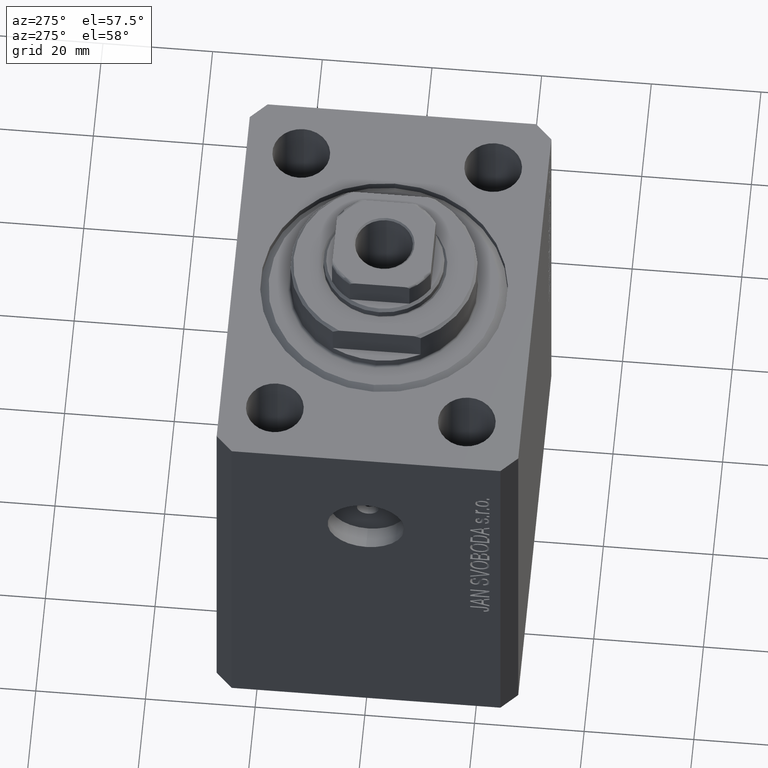
[diagram: clean part render]
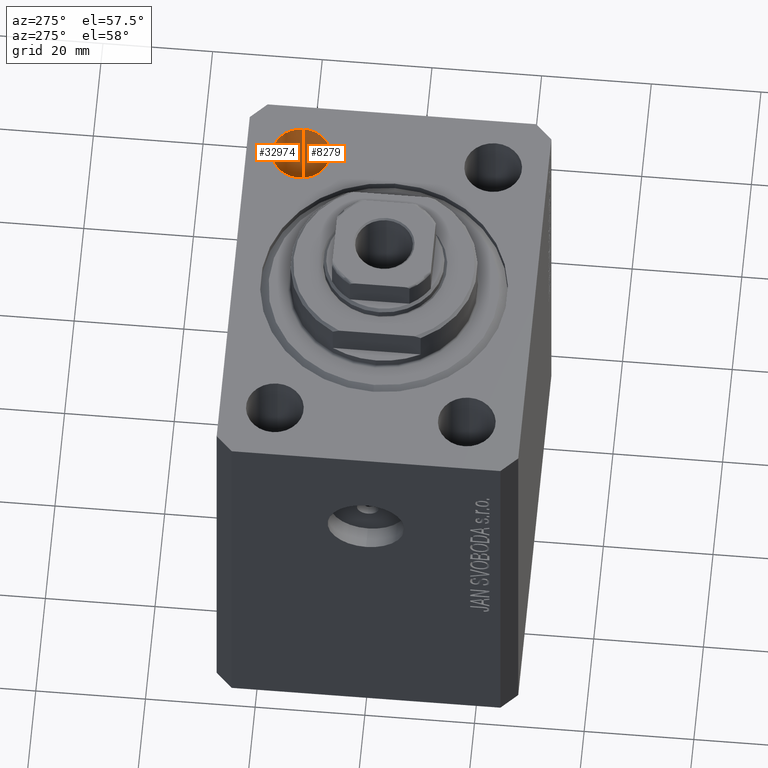
[diagram: same view with one multi-face feature highlighted, each face labeled with its STEP entity id]
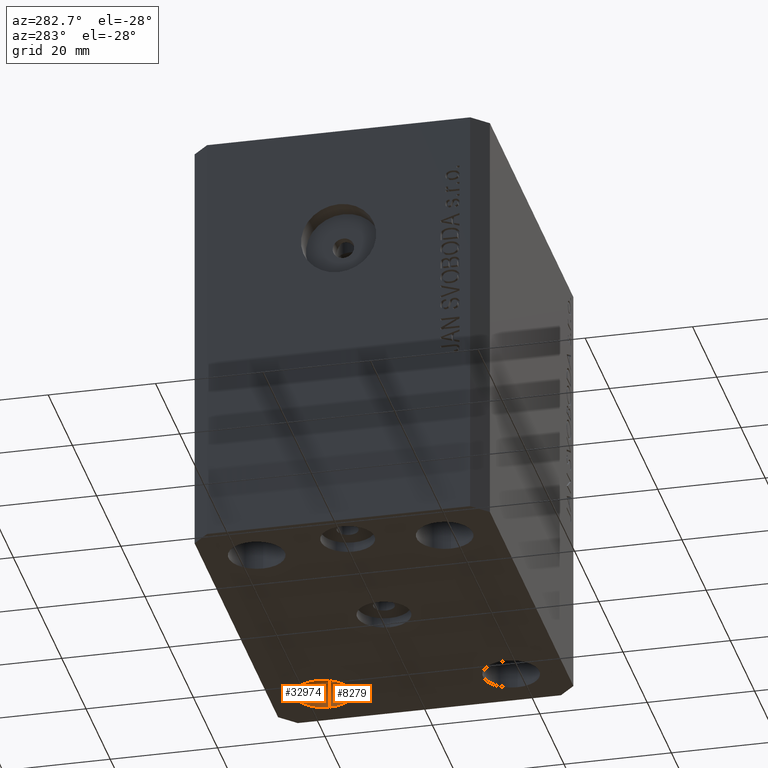
[diagram: same view with one multi-face feature highlighted, each face labeled with its STEP entity id]
A machine part, auxiliary view. The highlighted faces form ONE feature: a constant-radius fillet chain: 2 tangent blend faces with common blend radius 5.25 mm. The faces share edges in the B-rep.
A second angle (auxiliary view) of the same feature is appended — it is thin or edge-on in the first view.
Their STEP definitions:
[1] entity #32974 (Cylinder):
#3653 = EDGE_CURVE ( 'NONE', #6079, #40821, #25484, .T. ) ;
#3763 = LINE ( 'NONE', #31597, #25236 ) ;
#3975 = EDGE_CURVE ( 'NONE', #6079, #44770, #20588, .T. ) ;
#5504 = AXIS2_PLACEMENT_3D ( 'NONE', #19606, #15751, #32730 ) ;
#6079 = VERTEX_POINT ( 'NONE', #17397 ) ;
#8917 = CARTESIAN_POINT ( 'NONE',  ( 27.50000000000000000, 17.49999999999999289, 0.000000000000000000 ) ) ;
#9946 = CIRCLE ( 'NONE', #24406, 5.250000000000000888 ) ;
#12084 = DIRECTION ( 'NONE',  ( -0.000000000000000000, -0.000000000000000000, -1.000000000000000000 ) ) ;
#12414 = EDGE_LOOP ( 'NONE', ( #16641, #39788, #13053, #26008 ) ) ;
#13053 = ORIENTED_EDGE ( 'NONE', *, *, #42269, .T. ) ;
#14832 = DIRECTION ( 'NONE',  ( -0.000000000000000000, -0.000000000000000000, 1.000000000000000000 ) ) ;
#15751 = DIRECTION ( 'NONE',  ( -0.000000000000000000, -0.000000000000000000, 1.000000000000000000 ) ) ;
#16641 = ORIENTED_EDGE ( 'NONE', *, *, #3653, .F. ) ;
#17397 = CARTESIAN_POINT ( 'NONE',  ( 22.25000000000000000, 17.49999999999999289, -80.00000000000000000 ) ) ;
#17944 = CARTESIAN_POINT ( 'NONE',  ( 22.25000000000000000, 17.49999999999999289, 0.000000000000000000 ) ) ;
#19562 = DIRECTION ( 'NONE',  ( 0.000000000000000000, 0.000000000000000000, 1.000000000000000000 ) ) ;
#19606 = CARTESIAN_POINT ( 'NONE',  ( 27.50000000000000000, 17.49999999999999289, -94.84924240491750425 ) ) ;
#19926 = CARTESIAN_POINT ( 'NONE',  ( 32.75000000000000000, 17.49999999999999289, -80.00000000000000000 ) ) ;
#20588 = CIRCLE ( 'NONE', #33569, 5.250000000000000888 ) ;
#24406 = AXIS2_PLACEMENT_3D ( 'NONE', #8917, #19562, #32688 ) ;
#25236 = VECTOR ( 'NONE', #14832, 1000.000000000000000 ) ;
#25484 = LINE ( 'NONE', #43109, #29988 ) ;
#25896 = DIRECTION ( 'NONE',  ( 1.000000000000000000, 0.000000000000000000, 0.000000000000000000 ) ) ;
#26008 = ORIENTED_EDGE ( 'NONE', *, *, #36460, .T. ) ;
#29988 = VECTOR ( 'NONE', #39735, 1000.000000000000000 ) ;
#31597 = CARTESIAN_POINT ( 'NONE',  ( 32.75000000000000000, 17.49999999999999289, -94.84924240491750425 ) ) ;
#32057 = CARTESIAN_POINT ( 'NONE',  ( 32.75000000000000000, 17.49999999999999289, 0.000000000000000000 ) ) ;
#32688 = DIRECTION ( 'NONE',  ( 1.000000000000000000, 0.000000000000000000, 0.000000000000000000 ) ) ;
#32730 = DIRECTION ( 'NONE',  ( 1.000000000000000000, 0.000000000000000000, 0.000000000000000000 ) ) ;
#32974 = ADVANCED_FACE ( 'NONE', ( #36801 ), #33184, .F. ) ;
#33184 = CYLINDRICAL_SURFACE ( 'NONE', #5504, 5.250000000000000888 ) ;
#33569 = AXIS2_PLACEMENT_3D ( 'NONE', #43057, #12084, #25896 ) ;
#36460 = EDGE_CURVE ( 'NONE', #36777, #40821, #9946, .T. ) ;
#36777 = VERTEX_POINT ( 'NONE', #32057 ) ;
#36801 = FACE_OUTER_BOUND ( 'NONE', #12414, .T. ) ;
#39735 = DIRECTION ( 'NONE',  ( -0.000000000000000000, -0.000000000000000000, 1.000000000000000000 ) ) ;
#39788 = ORIENTED_EDGE ( 'NONE', *, *, #3975, .T. ) ;
#40821 = VERTEX_POINT ( 'NONE', #17944 ) ;
#42269 = EDGE_CURVE ( 'NONE', #44770, #36777, #3763, .T. ) ;
#43057 = CARTESIAN_POINT ( 'NONE',  ( 27.50000000000000000, 17.49999999999999289, -80.00000000000000000 ) ) ;
#43109 = CARTESIAN_POINT ( 'NONE',  ( 22.25000000000000000, 17.49999999999999289, -94.84924240491750425 ) ) ;
#44770 = VERTEX_POINT ( 'NONE', #19926 ) ;
[2] entity #8279 (Cylinder):
#383 = DIRECTION ( 'NONE',  ( -0.000000000000000000, -0.000000000000000000, 1.000000000000000000 ) ) ;
#921 = EDGE_CURVE ( 'NONE', #40821, #36777, #17017, .T. ) ;
#1487 = EDGE_LOOP ( 'NONE', ( #23560, #14980, #40543, #40764 ) ) ;
#2648 = DIRECTION ( 'NONE',  ( 1.000000000000000000, 0.000000000000000000, 0.000000000000000000 ) ) ;
#3653 = EDGE_CURVE ( 'NONE', #6079, #40821, #25484, .T. ) ;
#3763 = LINE ( 'NONE', #31597, #25236 ) ;
#3773 = CYLINDRICAL_SURFACE ( 'NONE', #38020, 5.250000000000000888 ) ;
#3992 = CARTESIAN_POINT ( 'NONE',  ( 27.50000000000000000, 17.49999999999999289, -94.84924240491750425 ) ) ;
#5366 = DIRECTION ( 'NONE',  ( -0.000000000000000000, -0.000000000000000000, -1.000000000000000000 ) ) ;
#6040 = DIRECTION ( 'NONE',  ( 0.000000000000000000, 0.000000000000000000, 1.000000000000000000 ) ) ;
#6079 = VERTEX_POINT ( 'NONE', #17397 ) ;
#6962 = FACE_OUTER_BOUND ( 'NONE', #1487, .T. ) ;
#8279 = ADVANCED_FACE ( 'NONE', ( #6962 ), #3773, .F. ) ;
#9451 = CARTESIAN_POINT ( 'NONE',  ( 27.50000000000000000, 17.49999999999999289, 0.000000000000000000 ) ) ;
#11205 = AXIS2_PLACEMENT_3D ( 'NONE', #9451, #6040, #43810 ) ;
#14185 = DIRECTION ( 'NONE',  ( 1.000000000000000000, 0.000000000000000000, 0.000000000000000000 ) ) ;
#14832 = DIRECTION ( 'NONE',  ( -0.000000000000000000, -0.000000000000000000, 1.000000000000000000 ) ) ;
#14980 = ORIENTED_EDGE ( 'NONE', *, *, #3653, .T. ) ;
#15719 = EDGE_CURVE ( 'NONE', #44770, #6079, #17997, .T. ) ;
#17017 = CIRCLE ( 'NONE', #11205, 5.250000000000000888 ) ;
#17267 = AXIS2_PLACEMENT_3D ( 'NONE', #26415, #5366, #2648 ) ;
#17397 = CARTESIAN_POINT ( 'NONE',  ( 22.25000000000000000, 17.49999999999999289, -80.00000000000000000 ) ) ;
#17944 = CARTESIAN_POINT ( 'NONE',  ( 22.25000000000000000, 17.49999999999999289, 0.000000000000000000 ) ) ;
#17997 = CIRCLE ( 'NONE', #17267, 5.250000000000000888 ) ;
#19926 = CARTESIAN_POINT ( 'NONE',  ( 32.75000000000000000, 17.49999999999999289, -80.00000000000000000 ) ) ;
#23560 = ORIENTED_EDGE ( 'NONE', *, *, #15719, .T. ) ;
#25236 = VECTOR ( 'NONE', #14832, 1000.000000000000000 ) ;
#25484 = LINE ( 'NONE', #43109, #29988 ) ;
#26415 = CARTESIAN_POINT ( 'NONE',  ( 27.50000000000000000, 17.49999999999999289, -80.00000000000000000 ) ) ;
#29988 = VECTOR ( 'NONE', #39735, 1000.000000000000000 ) ;
#31597 = CARTESIAN_POINT ( 'NONE',  ( 32.75000000000000000, 17.49999999999999289, -94.84924240491750425 ) ) ;
#32057 = CARTESIAN_POINT ( 'NONE',  ( 32.75000000000000000, 17.49999999999999289, 0.000000000000000000 ) ) ;
#36777 = VERTEX_POINT ( 'NONE', #32057 ) ;
#38020 = AXIS2_PLACEMENT_3D ( 'NONE', #3992, #383, #14185 ) ;
#39735 = DIRECTION ( 'NONE',  ( -0.000000000000000000, -0.000000000000000000, 1.000000000000000000 ) ) ;
#40543 = ORIENTED_EDGE ( 'NONE', *, *, #921, .T. ) ;
#40764 = ORIENTED_EDGE ( 'NONE', *, *, #42269, .F. ) ;
#40821 = VERTEX_POINT ( 'NONE', #17944 ) ;
#42269 = EDGE_CURVE ( 'NONE', #44770, #36777, #3763, .T. ) ;
#43109 = CARTESIAN_POINT ( 'NONE',  ( 22.25000000000000000, 17.49999999999999289, -94.84924240491750425 ) ) ;
#43810 = DIRECTION ( 'NONE',  ( 1.000000000000000000, 0.000000000000000000, 0.000000000000000000 ) ) ;
#44770 = VERTEX_POINT ( 'NONE', #19926 ) ;